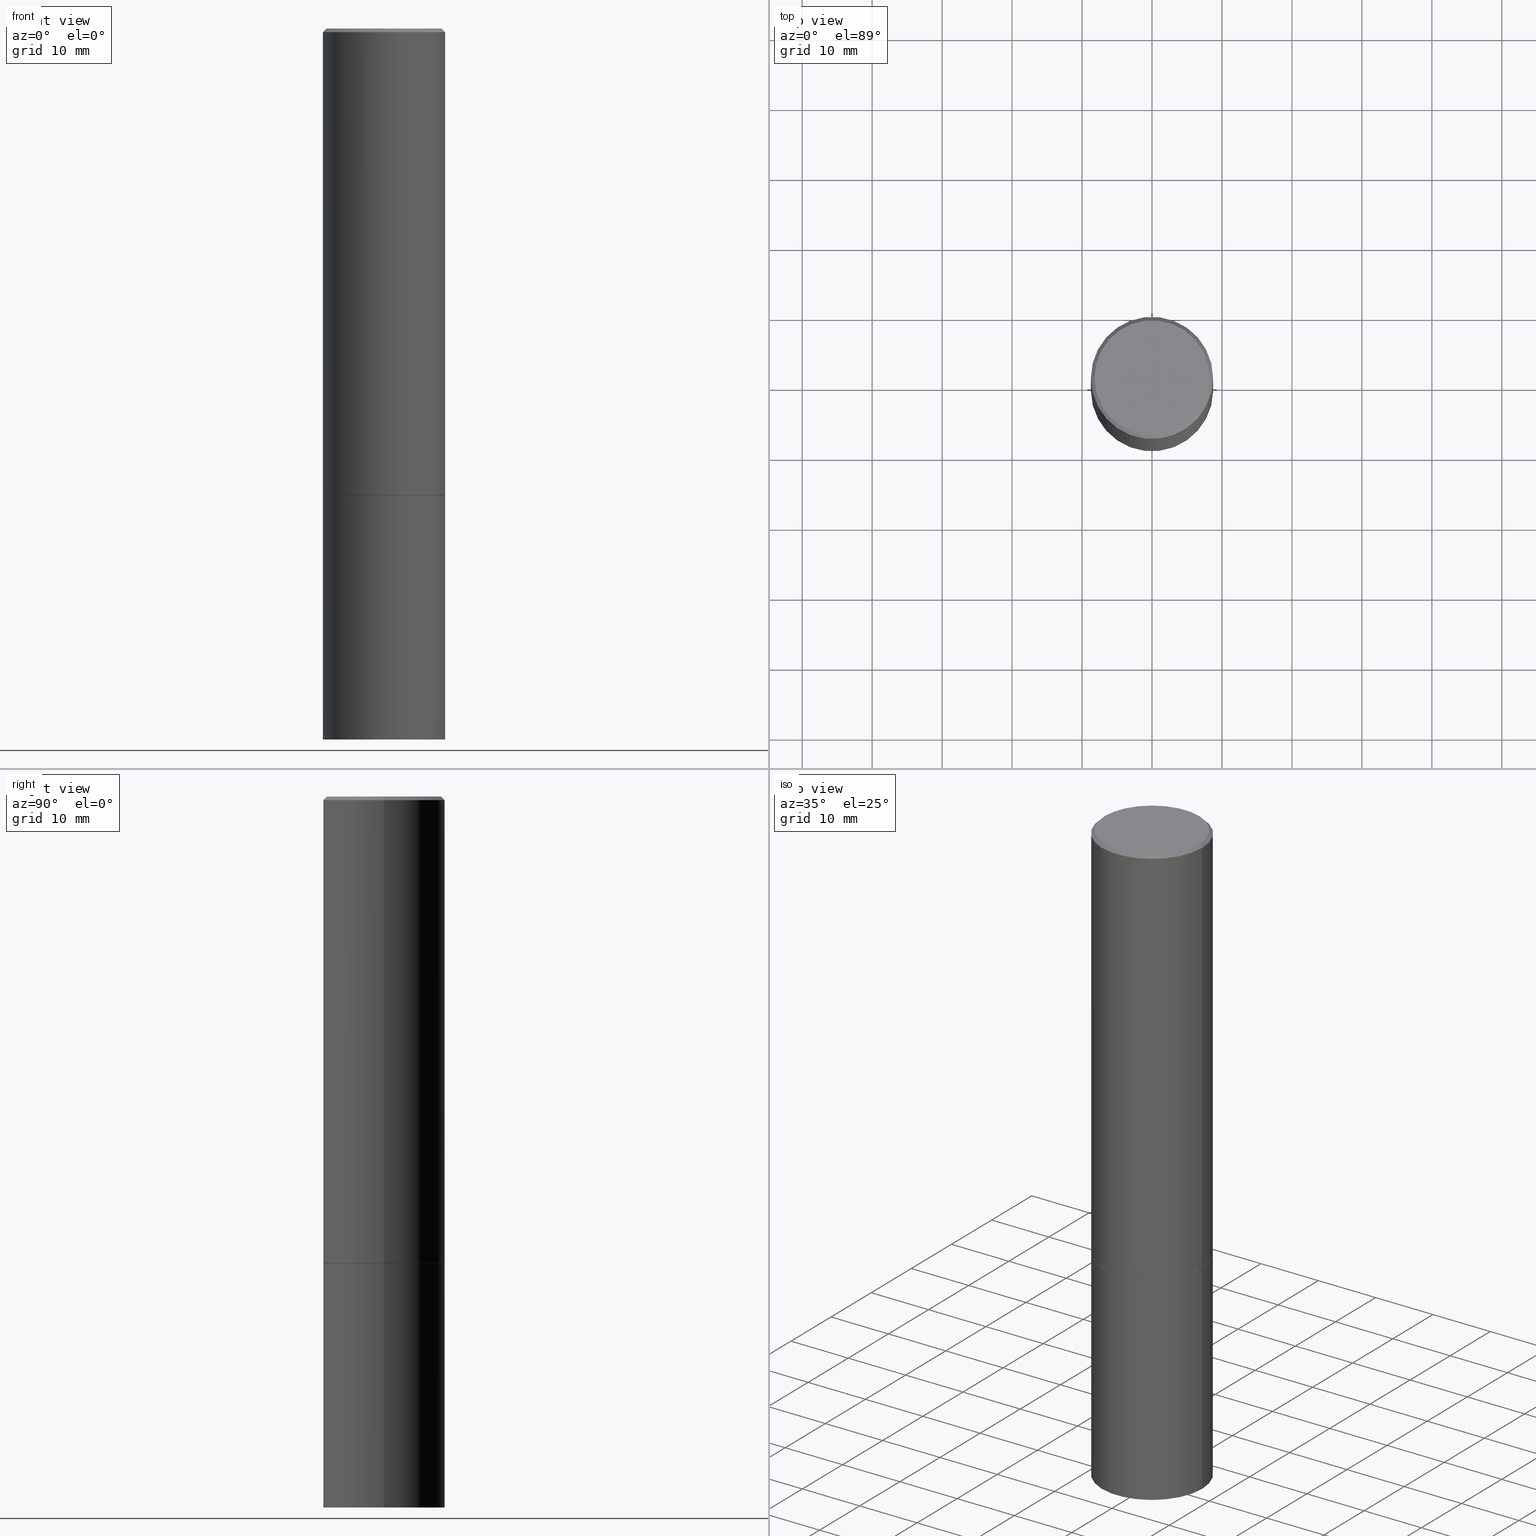
[diagram: canonical four-view strip — front | top / right | iso, engineering-drawing reading convention]
A machine part, canonical four-view strip (front | top / right | iso — engineering-drawing reading convention). The complete STEP part file that produces these views, byte-faithful:
ISO-10303-21;
HEADER;
FILE_DESCRIPTION (( 'STEP AP203' ),
    '1' );
FILE_NAME ('30025.STEP',
    '2023-03-21T20:21:11',
    ( '' ),
    ( '' ),
    'SwSTEP 2.0',
    'SolidWorks 2022',
    '' );
FILE_SCHEMA (( 'CONFIG_CONTROL_DESIGN' ));
ENDSEC;

DATA;
#1 = CC_DESIGN_APPROVAL ( #324, ( #250 ) ) ;
#2 = CIRCLE ( 'NONE', #228, 0.3427499999999999991 ) ;
#3 = VECTOR ( 'NONE', #205, 39.37007874015748143 ) ;
#4 = PERSON_AND_ORGANIZATION_ROLE ( 'creator' ) ;
#5 = EDGE_LOOP ( 'NONE', ( #345, #18, #171, #194 ) ) ;
#6 = EDGE_LOOP ( 'NONE', ( #71, #82, #374, #249 ) ) ;
#7 = DIRECTION ( 'NONE',  ( 1.000000000000000000, -6.982962677686263555E-15, 0.000000000000000000 ) ) ;
#8 = AXIS2_PLACEMENT_3D ( 'NONE', #204, #325, #292 ) ;
#9 = ORIENTED_EDGE ( 'NONE', *, *, #248, .F. ) ;
#10 = EDGE_CURVE ( 'NONE', #319, #305, #2, .T. ) ;
#11 = DIRECTION ( 'NONE',  ( -2.445468806185136597E-29, 3.491481338843145583E-15, 1.000000000000000000 ) ) ;
#12 = DIRECTION ( 'NONE',  ( 1.000000000000000000, -6.982962677686269077E-15, 0.000000000000000000 ) ) ;
#13 = ORIENTED_EDGE ( 'NONE', *, *, #192, .F. ) ;
#14 = CARTESIAN_POINT ( 'NONE',  ( 0.3427499999999999991, -1.155854897224022715E-14, -2.625000000000000444 ) ) ;
#15 = EDGE_LOOP ( 'NONE', ( #160, #49, #202, #73 ) ) ;
#16 = DIRECTION ( 'NONE',  ( 1.000000000000000000, -6.982962677686265133E-15, 4.876157412475882773E-29 ) ) ;
#17 = COORDINATED_UNIVERSAL_TIME_OFFSET ( 5, 0, .BEHIND. ) ;
#18 = ORIENTED_EDGE ( 'NONE', *, *, #210, .T. ) ;
#19 = AXIS2_PLACEMENT_3D ( 'NONE', #47, #165, #190 ) ;
#20 = CONICAL_SURFACE ( 'NONE', #274, 751.2258538476739886, 1.518436449235074148 ) ;
#21 = DIRECTION ( 'NONE',  ( -1.000000000000000000, 6.982962677686266711E-15, 0.000000000000000000 ) ) ;
#22 = APPLICATION_PROTOCOL_DEFINITION ( 'international standard', 'config_control_design', 1994, #179 ) ;
#23 = DIRECTION ( 'NONE',  ( -2.438088387897960049E-29, 3.491481338843145188E-15, 1.000000000000000000 ) ) ;
#24 = ADVANCED_FACE ( 'NONE', ( #222 ), #264, .F. ) ;
#25 = DIRECTION ( 'NONE',  ( -2.445468806185136597E-29, 3.491481338843145583E-15, 1.000000000000000000 ) ) ;
#26 = LOCAL_TIME ( 16, 21, 11.00000000000000000, #225 ) ;
#27 = ADVANCED_FACE ( 'NONE', ( #379 ), #106, .T. ) ;
#28 = AXIS2_PLACEMENT_3D ( 'NONE', #149, #90, #148 ) ;
#29 = DIRECTION ( 'NONE',  ( -1.000000000000000000, 6.982962677686266711E-15, 0.000000000000000000 ) ) ;
#30 = APPROVAL_ROLE ( '' ) ;
#31 = EDGE_CURVE ( 'NONE', #377, #283, #322, .T. ) ;
#32 = LINE ( 'NONE', #152, #263 ) ;
#33 = APPROVAL ( #191, 'UNSPECIFIED' ) ;
#34 = AXIS2_PLACEMENT_3D ( 'NONE', #40, #282, #12 ) ;
#35 = EDGE_CURVE ( 'NONE', #278, #168, #131, .T. ) ;
#36 = ORIENTED_EDGE ( 'NONE', *, *, #139, .F. ) ;
#37 = PRODUCT ( '30025', '30025', '', ( #242 ) ) ;
#38 = VERTEX_POINT ( 'NONE', #311 ) ;
#39 = DIRECTION ( 'NONE',  ( 1.000000000000000000, -6.982962677686265133E-15, 0.000000000000000000 ) ) ;
#40 = CARTESIAN_POINT ( 'NONE',  ( 9.781875224740546387E-29, -1.396592535537258233E-14, -4.000000000000000000 ) ) ;
#41 = EDGE_CURVE ( 'NONE', #305, #99, #134, .T. ) ;
#42 = VERTEX_POINT ( 'NONE', #43 ) ;
#43 = CARTESIAN_POINT ( 'NONE',  ( 0.3237499999999995937, -2.324606020144677531E-15, 4.268512490116445031E-18 ) ) ;
#44 = AXIS2_PLACEMENT_3D ( 'NONE', #272, #86, #361 ) ;
#45 = CONICAL_SURFACE ( 'NONE', #212, 751.2258538476739886, 1.518436449235074148 ) ;
#46 = EDGE_LOOP ( 'NONE', ( #80, #75, #129, #196 ) ) ;
#47 = CARTESIAN_POINT ( 'NONE',  ( 2.260734166900925613E-15, 0.3237499999999995937, -1.128232827205416735E-15 ) ) ;
#48 = PERSON_AND_ORGANIZATION ( #285, #304 ) ;
#49 = ORIENTED_EDGE ( 'NONE', *, *, #50, .F. ) ;
#50 = EDGE_CURVE ( 'NONE', #280, #42, #167, .T. ) ;
#51 =( NAMED_UNIT ( * ) PLANE_ANGLE_UNIT ( ) SI_UNIT ( $, .RADIAN. ) );
#52 = DIRECTION ( 'NONE',  ( 1.000000000000000000, -6.982962677686265922E-15, 4.876176775795935793E-29 ) ) ;
#53 = CARTESIAN_POINT ( 'NONE',  ( -1.043851414335219820E-46, 1.490343170380447200E-32, 4.268512490100411279E-18 ) ) ;
#54 = CALENDAR_DATE ( 2023, 21, 3 ) ;
#55 = EDGE_LOOP ( 'NONE', ( #258, #230 ) ) ;
#56 = FACE_OUTER_BOUND ( 'NONE', #138, .T. ) ;
#57 = LINE ( 'NONE', #321, #3 ) ;
#58 = CARTESIAN_POINT ( 'NONE',  ( -0.3237499999999995937, 2.295648980289356868E-15, 4.268512490084478446E-18 ) ) ;
#59 = DIRECTION ( 'NONE',  ( 1.000000000000000000, -6.982962677686265922E-15, 4.876176775795935793E-29 ) ) ;
#60 = CARTESIAN_POINT ( 'NONE',  ( 0.3437500000000006661, -1.632422154210654946E-14, -4.000000000000000000 ) ) ;
#61 = LOCAL_TIME ( 16, 21, 11.00000000000000000, #151 ) ;
#62 = CARTESIAN_POINT ( 'NONE',  ( -0.3437500000000006661, -1.156553193491792420E-14, -4.000000000000000000 ) ) ;
#63 = EDGE_CURVE ( 'NONE', #42, #168, #284, .T. ) ;
#64 = CALENDAR_DATE ( 2023, 21, 3 ) ;
#65 = LINE ( 'NONE', #185, #102 ) ;
#66 = PERSON_AND_ORGANIZATION ( #285, #304 ) ;
#67 = CIRCLE ( 'NONE', #118, 0.3437500000000000000 ) ;
#68 = EDGE_CURVE ( 'NONE', #305, #319, #389, .T. ) ;
#69 = ADVANCED_BREP_SHAPE_REPRESENTATION ( '30025', ( #218, #336, #217 ), #126 ) ;
#70 = CONICAL_SURFACE ( 'NONE', #166, 0.3427499999999999991, 0.7853981633972775267 ) ;
#71 = ORIENTED_EDGE ( 'NONE', *, *, #244, .F. ) ;
#72 = CC_DESIGN_PERSON_AND_ORGANIZATION_ASSIGNMENT ( #48, #94, ( #239 ) ) ;
#73 = ORIENTED_EDGE ( 'NONE', *, *, #35, .T. ) ;
#74 = DIRECTION ( 'NONE',  ( 1.000000000000000000, -6.982962677686266711E-15, 0.000000000000000000 ) ) ;
#75 = ORIENTED_EDGE ( 'NONE', *, *, #10, .T. ) ;
#76 = DIRECTION ( 'NONE',  ( 1.000000000000000000, -6.982962677686267499E-15, 4.876176775795935232E-29 ) ) ;
#77 = CC_DESIGN_APPROVAL ( #33, ( #227 ) ) ;
#78 = CLOSED_SHELL ( 'NONE', ( #100, #155, #359, #302, #293 ) ) ;
#79 = APPROVAL_STATUS ( 'not_yet_approved' ) ;
#80 = ORIENTED_EDGE ( 'NONE', *, *, #210, .F. ) ;
#81 = CARTESIAN_POINT ( 'NONE',  ( -0.3437500000000000000, 2.442490654175344389E-15, -1.690883937275123635E-29 ) ) ;
#82 = ORIENTED_EDGE ( 'NONE', *, *, #63, .T. ) ;
#83 = CARTESIAN_POINT ( 'NONE',  ( 1.060161191344789336E-27, -1.513629209411318885E-13, -43.35206356602893152 ) ) ;
#84 = DIRECTION ( 'NONE',  ( 1.000000000000000000, -6.982962677686263555E-15, 0.000000000000000000 ) ) ;
#85 =( NAMED_UNIT ( * ) SI_UNIT ( $, .STERADIAN. ) SOLID_ANGLE_UNIT ( ) );
#86 = DIRECTION ( 'NONE',  ( 2.438088387897960049E-29, -3.491481338843145188E-15, -1.000000000000000000 ) ) ;
#87 = CIRCLE ( 'NONE', #28, 0.3437499999999996669 ) ;
#88 = EDGE_CURVE ( 'NONE', #256, #283, #140, .T. ) ;
#89 = EDGE_CURVE ( 'NONE', #99, #38, #335, .T. ) ;
#90 = DIRECTION ( 'NONE',  ( -2.445468806185136597E-29, 3.491481338843145583E-15, 1.000000000000000000 ) ) ;
#91 = DATE_AND_TIME ( #143, #112 ) ;
#92 = CARTESIAN_POINT ( 'NONE',  ( -0.3437500000000000000, -9.123041280742575082E-15, -2.625000000000000000 ) ) ;
#93 = AXIS2_PLACEMENT_3D ( 'NONE', #269, #120, #29 ) ;
#94 = PERSON_AND_ORGANIZATION_ROLE ( 'classification_officer' ) ;
#95 = DIRECTION ( 'NONE',  ( -0.9986295347545742773, 6.790662755453668466E-15, -0.05233595624293643084 ) ) ;
#96 = LENGTH_MEASURE_WITH_UNIT ( LENGTH_MEASURE( 0.02539999999999999897 ), #237 );
#97 = APPROVAL_PERSON_ORGANIZATION ( #344, #354, #289 ) ;
#98 = CC_DESIGN_PERSON_AND_ORGANIZATION_ASSIGNMENT ( #330, #318, ( #227 ) ) ;
#99 = VERTEX_POINT ( 'NONE', #259 ) ;
#100 = ADVANCED_FACE ( 'NONE', ( #229 ), #349, .T. ) ;
#101 = DIMENSIONAL_EXPONENTS ( 1.000000000000000000, 0.000000000000000000, 0.000000000000000000, 0.000000000000000000, 0.000000000000000000, 0.000000000000000000, 0.000000000000000000 ) ;
#102 = VECTOR ( 'NONE', #122, 39.37007874015748143 ) ;
#103 = VERTEX_POINT ( 'NONE', #281 ) ;
#104 = LINE ( 'NONE', #254, #298 ) ;
#105 = ORIENTED_EDGE ( 'NONE', *, *, #139, .T. ) ;
#106 = CYLINDRICAL_SURFACE ( 'NONE', #153, 0.3437499999999998335 ) ;
#107 = PERSON_AND_ORGANIZATION_ROLE ( 'creator' ) ;
#108 = ORIENTED_EDGE ( 'NONE', *, *, #299, .T. ) ;
#109 = DIRECTION ( 'NONE',  ( 0.7071067811865469066, -7.319954787623254468E-15, -0.7071067811865482389 ) ) ;
#110 = DIRECTION ( 'NONE',  ( -2.445468806185136597E-29, 3.491481338843145583E-15, 1.000000000000000000 ) ) ;
#111 = AXIS2_PLACEMENT_3D ( 'NONE', #388, #241, #365 ) ;
#112 = LOCAL_TIME ( 16, 21, 11.00000000000000000, #17 ) ;
#113 = ORIENTED_EDGE ( 'NONE', *, *, #251, .T. ) ;
#114 = DIRECTION ( 'NONE',  ( -2.445468806185136877E-29, 3.491481338843145188E-15, 1.000000000000000000 ) ) ;
#115 = CARTESIAN_POINT ( 'NONE',  ( 0.3437499999999996669, -2.428125813510824906E-15, -0.02000000000000009409 ) ) ;
#116 = DIRECTION ( 'NONE',  ( -2.445468806185136597E-29, 3.491481338843145583E-15, 1.000000000000000000 ) ) ;
#117 = CARTESIAN_POINT ( 'NONE',  ( 1.060161191344789336E-27, -1.513629209411318885E-13, -43.35206356602893152 ) ) ;
#118 = AXIS2_PLACEMENT_3D ( 'NONE', #119, #116, #235 ) ;
#119 = CARTESIAN_POINT ( 'NONE',  ( 9.781875224740546387E-29, -1.396592535537258233E-14, -4.000000000000000000 ) ) ;
#120 = DIRECTION ( 'NONE',  ( 2.445468806185136597E-29, -3.491481338843145583E-15, -1.000000000000000000 ) ) ;
#121 = VECTOR ( 'NONE', #95, 39.37007874015748143 ) ;
#122 = DIRECTION ( 'NONE',  ( -0.7071067811865469066, 2.468850131082249961E-15, -0.7071067811865482389 ) ) ;
#123 = COORDINATED_UNIVERSAL_TIME_OFFSET ( 5, 0, .BEHIND. ) ;
#124 = APPROVAL_STATUS ( 'not_yet_approved' ) ;
#125 = CIRCLE ( 'NONE', #111, 0.3437500000000000000 ) ;
#126 =( GEOMETRIC_REPRESENTATION_CONTEXT ( 3 ) GLOBAL_UNCERTAINTY_ASSIGNED_CONTEXT ( ( #362 ) ) GLOBAL_UNIT_ASSIGNED_CONTEXT ( ( #301, #51, #85 ) ) REPRESENTATION_CONTEXT ( 'NONE', 'WORKASPACE' ) );
#127 = ORIENTED_EDGE ( 'NONE', *, *, #68, .F. ) ;
#128 = APPROVAL_DATE_TIME ( #159, #324 ) ;
#129 = ORIENTED_EDGE ( 'NONE', *, *, #41, .T. ) ;
#130 = DIRECTION ( 'NONE',  ( -2.445468806185136597E-29, 3.491481338843145583E-15, 1.000000000000000000 ) ) ;
#131 = CIRCLE ( 'NONE', #357, 0.3437499999999996669 ) ;
#132 = AXIS2_PLACEMENT_3D ( 'NONE', #163, #11, #7 ) ;
#133 = ORIENTED_EDGE ( 'NONE', *, *, #244, .T. ) ;
#134 = LINE ( 'NONE', #14, #369 ) ;
#135 = PERSON_AND_ORGANIZATION ( #285, #304 ) ;
#136 = ORIENTED_EDGE ( 'NONE', *, *, #35, .F. ) ;
#137 = CARTESIAN_POINT ( 'NONE',  ( 6.419355616235984688E-29, -9.165138514463258190E-15, -2.625000000000000444 ) ) ;
#138 = EDGE_LOOP ( 'NONE', ( #13, #113, #193 ) ) ;
#139 = EDGE_CURVE ( 'NONE', #368, #377, #172, .T. ) ;
#140 = LINE ( 'NONE', #81, #188 ) ;
#141 = LOCAL_TIME ( 16, 21, 11.00000000000000000, #307 ) ;
#142 = AXIS2_PLACEMENT_3D ( 'NONE', #145, #265, #327 ) ;
#143 = CALENDAR_DATE ( 2023, 21, 3 ) ;
#144 = DIRECTION ( 'NONE',  ( 1.000000000000000000, -6.982962677686265133E-15, 0.000000000000000000 ) ) ;
#145 = CARTESIAN_POINT ( 'NONE',  ( 4.890937612370296805E-31, -6.982962677686323656E-17, -0.02000000000000009409 ) ) ;
#146 = CC_DESIGN_PERSON_AND_ORGANIZATION_ASSIGNMENT ( #156, #366, ( #37 ) ) ;
#147 = CARTESIAN_POINT ( 'NONE',  ( 6.419355616235984688E-29, -9.165138514463258190E-15, -2.625000000000000444 ) ) ;
#148 = DIRECTION ( 'NONE',  ( 1.000000000000000000, -6.982962677686266711E-15, 0.000000000000000000 ) ) ;
#149 = CARTESIAN_POINT ( 'NONE',  ( 4.890937612370296805E-31, -6.982962677686323656E-17, -0.02000000000000009409 ) ) ;
#150 = CARTESIAN_POINT ( 'NONE',  ( -0.3437499999999996669, 2.330563793677788517E-15, -0.02000000000000009409 ) ) ;
#151 = COORDINATED_UNIVERSAL_TIME_OFFSET ( 5, 0, .BEHIND. ) ;
#152 = CARTESIAN_POINT ( 'NONE',  ( -0.3427499999999999991, -6.729753287645514809E-15, -2.625000000000000444 ) ) ;
#153 = AXIS2_PLACEMENT_3D ( 'NONE', #343, #130, #76 ) ;
#154 = EDGE_CURVE ( 'NONE', #99, #168, #231, .T. ) ;
#155 = ADVANCED_FACE ( 'NONE', ( #56 ), #20, .F. ) ;
#156 = PERSON_AND_ORGANIZATION ( #285, #304 ) ;
#157 = DESIGN_CONTEXT ( 'detailed design', #353, 'design' ) ;
#158 = CIRCLE ( 'NONE', #177, 0.3437500000000000000 ) ;
#159 = DATE_AND_TIME ( #271, #312 ) ;
#160 = ORIENTED_EDGE ( 'NONE', *, *, #63, .F. ) ;
#161 = PRODUCT_DEFINITION_SHAPE ( 'NONE', 'NONE',  #250 ) ;
#162 = EDGE_LOOP ( 'NONE', ( #350, #173, #189, #36 ) ) ;
#163 = CARTESIAN_POINT ( 'NONE',  ( 6.416910147429799085E-29, -9.161647033124413605E-15, -2.624000000000000110 ) ) ;
#164 = ORIENTED_EDGE ( 'NONE', *, *, #50, .T. ) ;
#165 = DIRECTION ( 'NONE',  ( 2.438088387897960049E-29, -3.491481338843145188E-15, -1.000000000000000000 ) ) ;
#166 = AXIS2_PLACEMENT_3D ( 'NONE', #232, #355, #328 ) ;
#167 = CIRCLE ( 'NONE', #364, 0.3237499999999995937 ) ;
#168 = VERTEX_POINT ( 'NONE', #115 ) ;
#169 = CC_DESIGN_DATE_AND_TIME_ASSIGNMENT ( #376, #214, ( #239 ) ) ;
#170 = DIRECTION ( 'NONE',  ( 1.000000000000000000, -6.982962677686269077E-15, 0.000000000000000000 ) ) ;
#171 = ORIENTED_EDGE ( 'NONE', *, *, #89, .F. ) ;
#172 = LINE ( 'NONE', #262, #276 ) ;
#173 = ORIENTED_EDGE ( 'NONE', *, *, #88, .T. ) ;
#174 = FACE_OUTER_BOUND ( 'NONE', #5, .T. ) ;
#175 = EDGE_CURVE ( 'NONE', #38, #278, #104, .T. ) ;
#176 = CARTESIAN_POINT ( 'NONE',  ( -0.3427499999999999991, -6.724454833297293196E-15, -2.625000000000000444 ) ) ;
#177 = AXIS2_PLACEMENT_3D ( 'NONE', #358, #206, #84 ) ;
#178 = CARTESIAN_POINT ( 'NONE',  ( 0.3427499999999999991, -1.155854897224022715E-14, -2.625000000000000444 ) ) ;
#179 = APPLICATION_CONTEXT ( 'configuration controlled 3d designs of mechanical parts and assemblies' ) ;
#180 = CARTESIAN_POINT ( 'NONE',  ( 6.419355616235984688E-29, -9.165138514463258190E-15, -2.625000000000000444 ) ) ;
#181 = ADVANCED_FACE ( 'NONE', ( #174 ), #70, .T. ) ;
#182 = DIRECTION ( 'NONE',  ( 2.445468806185136597E-29, -3.491481338843145583E-15, -1.000000000000000000 ) ) ;
#183 = CONICAL_SURFACE ( 'NONE', #142, 0.3437499999999996669, 0.7853981633974473908 ) ;
#184 = FACE_OUTER_BOUND ( 'NONE', #6, .T. ) ;
#185 = CARTESIAN_POINT ( 'NONE',  ( -0.3437499999999996669, 2.330563793677788517E-15, -0.02000000000000009409 ) ) ;
#186 = CONICAL_SURFACE ( 'NONE', #245, 0.3427499999999999991, 0.7853981633972775267 ) ;
#187 = CLOSED_SHELL ( 'NONE', ( #181, #306, #261, #247, #27, #303, #348, #24 ) ) ;
#188 = VECTOR ( 'NONE', #198, 39.37007874015748143 ) ;
#189 = ORIENTED_EDGE ( 'NONE', *, *, #31, .F. ) ;
#190 = DIRECTION ( 'NONE',  ( -1.000000000000000000, 6.982962677686265922E-15, -4.876176775795935793E-29 ) ) ;
#191 = APPROVAL_STATUS ( 'not_yet_approved' ) ;
#192 = EDGE_CURVE ( 'NONE', #103, #256, #333, .T. ) ;
#193 = ORIENTED_EDGE ( 'NONE', *, *, #236, .F. ) ;
#194 = ORIENTED_EDGE ( 'NONE', *, *, #41, .F. ) ;
#195 = PERSON_AND_ORGANIZATION ( #285, #304 ) ;
#196 = ORIENTED_EDGE ( 'NONE', *, *, #299, .F. ) ;
#197 = APPROVAL_PERSON_ORGANIZATION ( #66, #324, #390 ) ;
#198 = DIRECTION ( 'NONE',  ( -2.445468806185136877E-29, 3.491481338843145188E-15, 1.000000000000000000 ) ) ;
#199 = AXIS2_PLACEMENT_3D ( 'NONE', #386, #25, #59 ) ;
#200 = ORIENTED_EDGE ( 'NONE', *, *, #236, .T. ) ;
#201 = CARTESIAN_POINT ( 'NONE',  ( 0.000000000000000000, 0.000000000000000000, 0.000000000000000000 ) ) ;
#202 = ORIENTED_EDGE ( 'NONE', *, *, #209, .T. ) ;
#203 = DIRECTION ( 'NONE',  ( 2.445468806185136597E-29, -3.491481338843145583E-15, -1.000000000000000000 ) ) ;
#204 = CARTESIAN_POINT ( 'NONE',  ( 0.000000000000000000, 0.000000000000000000, 0.000000000000000000 ) ) ;
#205 = DIRECTION ( 'NONE',  ( 0.9986295347545742773, -7.033825938271997912E-15, -0.05233595624293643084 ) ) ;
#206 = DIRECTION ( 'NONE',  ( -2.445468806185136597E-29, 3.491481338843145583E-15, 1.000000000000000000 ) ) ;
#207 = FACE_OUTER_BOUND ( 'NONE', #316, .T. ) ;
#208 = APPROVAL_DATE_TIME ( #91, #354 ) ;
#209 = EDGE_CURVE ( 'NONE', #280, #278, #65, .T. ) ;
#210 = EDGE_CURVE ( 'NONE', #319, #38, #32, .T. ) ;
#211 = FACE_OUTER_BOUND ( 'NONE', #337, .T. ) ;
#212 = AXIS2_PLACEMENT_3D ( 'NONE', #117, #182, #329 ) ;
#213 = VECTOR ( 'NONE', #371, 39.37007874015748143 ) ;
#214 = DATE_TIME_ROLE ( 'classification_date' ) ;
#215 = EDGE_CURVE ( 'NONE', #283, #377, #125, .T. ) ;
#216 = CARTESIAN_POINT ( 'NONE',  ( -7.993848664353087702E-19, -1.390302571108676536E-14, -3.981984825871457190 ) ) ;
#217 = AXIS2_PLACEMENT_3D ( 'NONE', #326, #294, #387 ) ;
#218 = MANIFOLD_SOLID_BREP ( 'Body-Move/Copy2[1]', #78 ) ;
#219 = ORIENTED_EDGE ( 'NONE', *, *, #10, .F. ) ;
#220 = ORIENTED_EDGE ( 'NONE', *, *, #88, .F. ) ;
#221 = CC_DESIGN_PERSON_AND_ORGANIZATION_ASSIGNMENT ( #135, #107, ( #227 ) ) ;
#222 = FACE_OUTER_BOUND ( 'NONE', #260, .T. ) ;
#223 = EDGE_LOOP ( 'NONE', ( #372, #342, #9, #246 ) ) ;
#224 = DIRECTION ( 'NONE',  ( -2.445468806185136597E-29, 3.491481338843145583E-15, 1.000000000000000000 ) ) ;
#225 = COORDINATED_UNIVERSAL_TIME_OFFSET ( 5, 0, .BEHIND. ) ;
#226 = EDGE_LOOP ( 'NONE', ( #310, #108, #339, #136 ) ) ;
#227 = PRODUCT_DEFINITION_FORMATION_WITH_SPECIFIED_SOURCE ( 'ANY', '', #37, .NOT_KNOWN. ) ;
#228 = AXIS2_PLACEMENT_3D ( 'NONE', #373, #224, #144 ) ;
#229 = FACE_OUTER_BOUND ( 'NONE', #162, .T. ) ;
#230 = ORIENTED_EDGE ( 'NONE', *, *, #215, .T. ) ;
#231 = LINE ( 'NONE', #351, #213 ) ;
#232 = CARTESIAN_POINT ( 'NONE',  ( 6.419355616235984688E-29, -9.165138514463258190E-15, -2.625000000000000444 ) ) ;
#233 = CYLINDRICAL_SURFACE ( 'NONE', #8, 0.3437499999999998335 ) ;
#234 = VECTOR ( 'NONE', #109, 39.37007874015748143 ) ;
#235 = DIRECTION ( 'NONE',  ( 1.000000000000000000, -6.982962677686269077E-15, 0.000000000000000000 ) ) ;
#236 = EDGE_CURVE ( 'NONE', #256, #368, #323, .T. ) ;
#237 =( LENGTH_UNIT ( ) NAMED_UNIT ( * ) SI_UNIT ( $, .METRE. ) );
#238 = APPROVAL_DATE_TIME ( #270, #33 ) ;
#239 = SECURITY_CLASSIFICATION ( '', '', #363 ) ;
#240 = CC_DESIGN_DATE_AND_TIME_ASSIGNMENT ( #341, #338, ( #250 ) ) ;
#241 = DIRECTION ( 'NONE',  ( -2.445468806185136597E-29, 3.491481338843145583E-15, 1.000000000000000000 ) ) ;
#242 = MECHANICAL_CONTEXT ( 'NONE', #179, 'mechanical' ) ;
#243 = APPROVAL_PERSON_ORGANIZATION ( #195, #33, #30 ) ;
#244 = EDGE_CURVE ( 'NONE', #42, #280, #346, .T. ) ;
#245 = AXIS2_PLACEMENT_3D ( 'NONE', #180, #300, #267 ) ;
#246 = ORIENTED_EDGE ( 'NONE', *, *, #154, .F. ) ;
#247 = ADVANCED_FACE ( 'NONE', ( #381 ), #332, .T. ) ;
#248 = EDGE_CURVE ( 'NONE', #168, #278, #87, .T. ) ;
#249 = ORIENTED_EDGE ( 'NONE', *, *, #209, .F. ) ;
#250 = PRODUCT_DEFINITION ( 'UNKNOWN', '', #227, #157 ) ;
#251 = EDGE_CURVE ( 'NONE', #103, #368, #57, .T. ) ;
#252 = AXIS2_PLACEMENT_3D ( 'NONE', #315, #340, #170 ) ;
#253 = AXIS2_PLACEMENT_3D ( 'NONE', #53, #110, #331 ) ;
#254 = CARTESIAN_POINT ( 'NONE',  ( -0.3437499999999998335, 2.442490654175343206E-15, -1.690883937275123074E-29 ) ) ;
#255 = CALENDAR_DATE ( 2023, 21, 3 ) ;
#256 = VERTEX_POINT ( 'NONE', #62 ) ;
#257 = CARTESIAN_POINT ( 'NONE',  ( -1.043851414335219820E-46, 1.490343170380447200E-32, 4.268512490100411279E-18 ) ) ;
#258 = ORIENTED_EDGE ( 'NONE', *, *, #31, .T. ) ;
#259 = CARTESIAN_POINT ( 'NONE',  ( 0.3437500000000000000, -1.156204045357906700E-14, -2.624000000000000110 ) ) ;
#260 = EDGE_LOOP ( 'NONE', ( #164, #133 ) ) ;
#261 = ADVANCED_FACE ( 'NONE', ( #184 ), #183, .T. ) ;
#262 = CARTESIAN_POINT ( 'NONE',  ( 0.3437500000000000000, -2.400393420454653787E-15, 1.676185766679852859E-29 ) ) ;
#263 = VECTOR ( 'NONE', #273, 39.37007874015748143 ) ;
#264 = PLANE ( 'NONE',  #19 ) ;
#265 = DIRECTION ( 'NONE',  ( 2.445468806185136597E-29, -3.491481338843145583E-15, -1.000000000000000000 ) ) ;
#266 = CYLINDRICAL_SURFACE ( 'NONE', #199, 0.3437500000000000000 ) ;
#267 = DIRECTION ( 'NONE',  ( 1.000000000000000000, -6.982962677686265133E-15, 0.000000000000000000 ) ) ;
#268 = AXIS2_PLACEMENT_3D ( 'NONE', #147, #23, #380 ) ;
#269 = CARTESIAN_POINT ( 'NONE',  ( 4.890937612370296805E-31, -6.982962677686323656E-17, -0.02000000000000009409 ) ) ;
#270 = DATE_AND_TIME ( #64, #61 ) ;
#271 = CALENDAR_DATE ( 2023, 21, 3 ) ;
#272 = CARTESIAN_POINT ( 'NONE',  ( 2.400393420454718079E-15, 0.3437499999999908407, -2.625000000000000888 ) ) ;
#273 = DIRECTION ( 'NONE',  ( -0.7071067811864267805, 7.493145998869918709E-15, 0.7071067811866682540 ) ) ;
#274 = AXIS2_PLACEMENT_3D ( 'NONE', #83, #203, #21 ) ;
#275 = APPLICATION_PROTOCOL_DEFINITION ( 'international standard', 'config_control_design', 1994, #353 ) ;
#276 = VECTOR ( 'NONE', #114, 39.37007874015748143 ) ;
#277 = PERSON_AND_ORGANIZATION ( #285, #304 ) ;
#278 = VERTEX_POINT ( 'NONE', #150 ) ;
#279 = PRODUCT_RELATED_PRODUCT_CATEGORY ( 'detail', '', ( #37 ) ) ;
#280 = VERTEX_POINT ( 'NONE', #58 ) ;
#281 = CARTESIAN_POINT ( 'NONE',  ( 9.737261470902389695E-29, -1.390382509595329685E-14, -3.981984825871457190 ) ) ;
#282 = DIRECTION ( 'NONE',  ( -2.445468806185136597E-29, 3.491481338843145583E-15, 1.000000000000000000 ) ) ;
#283 = VERTEX_POINT ( 'NONE', #92 ) ;
#284 = LINE ( 'NONE', #378, #234 ) ;
#285 = PERSON ( 'UNSPECIFIED', 'UNSPECIFIED', 'UNSPECIFIED', ('UNSPECIFIED'), ('UNSPECIFIED'), ('UNSPECIFIED') ) ;
#286 = DIRECTION ( 'NONE',  ( 0.7071067811864267805, -2.468850131080992517E-15, 0.7071067811866682540 ) ) ;
#287 = ORIENTED_EDGE ( 'NONE', *, *, #251, .F. ) ;
#288 = CARTESIAN_POINT ( 'NONE',  ( 4.890937612370296805E-31, -6.982962677686323656E-17, -0.02000000000000009409 ) ) ;
#289 = APPROVAL_ROLE ( '' ) ;
#290 = ORIENTED_EDGE ( 'NONE', *, *, #215, .F. ) ;
#291 = DIRECTION ( 'NONE',  ( -2.445468806185136597E-29, 3.491481338843145583E-15, 1.000000000000000000 ) ) ;
#292 = DIRECTION ( 'NONE',  ( 1.000000000000000000, -6.982962677686267499E-15, 4.876176775795935232E-29 ) ) ;
#293 = ADVANCED_FACE ( 'NONE', ( #384 ), #352, .F. ) ;
#294 = DIRECTION ( 'NONE',  ( 0.000000000000000000, 0.000000000000000000, 1.000000000000000000 ) ) ;
#295 = FACE_OUTER_BOUND ( 'NONE', #308, .T. ) ;
#296 = CC_DESIGN_APPROVAL ( #354, ( #239 ) ) ;
#297 = CARTESIAN_POINT ( 'NONE',  ( 0.3437500000000000000, -1.156553193491791158E-14, -2.625000000000000000 ) ) ;
#298 = VECTOR ( 'NONE', #320, 39.37007874015748143 ) ;
#299 = EDGE_CURVE ( 'NONE', #38, #99, #158, .T. ) ;
#300 = DIRECTION ( 'NONE',  ( -2.445468806185136597E-29, 3.491481338843145583E-15, 1.000000000000000000 ) ) ;
#301 =( CONVERSION_BASED_UNIT ( 'INCH', #96 ) LENGTH_UNIT ( ) NAMED_UNIT ( #101 ) );
#302 = ADVANCED_FACE ( 'NONE', ( #295 ), #266, .T. ) ;
#303 = ADVANCED_FACE ( 'NONE', ( #356 ), #186, .T. ) ;
#304 = ORGANIZATION ( 'UNSPECIFIED', 'UNSPECIFIED', '' ) ;
#305 = VERTEX_POINT ( 'NONE', #178 ) ;
#306 = ADVANCED_FACE ( 'NONE', ( #385 ), #233, .T. ) ;
#307 = COORDINATED_UNIVERSAL_TIME_OFFSET ( 5, 0, .BEHIND. ) ;
#308 = EDGE_LOOP ( 'NONE', ( #220, #200, #105, #290 ) ) ;
#309 = DIRECTION ( 'NONE',  ( -2.445468806185136597E-29, 3.491481338843145583E-15, 1.000000000000000000 ) ) ;
#310 = ORIENTED_EDGE ( 'NONE', *, *, #175, .F. ) ;
#311 = CARTESIAN_POINT ( 'NONE',  ( -0.3437500000000000000, -2.173247675775292485E-15, -2.624000000000000110 ) ) ;
#312 = LOCAL_TIME ( 16, 21, 11.00000000000000000, #123 ) ;
#313 = ORIENTED_EDGE ( 'NONE', *, *, #192, .T. ) ;
#314 = EDGE_CURVE ( 'NONE', #368, #256, #67, .T. ) ;
#315 = CARTESIAN_POINT ( 'NONE',  ( 6.419355616235983567E-29, -9.165138514463256612E-15, -2.625000000000000000 ) ) ;
#316 = EDGE_LOOP ( 'NONE', ( #287, #313, #370 ) ) ;
#317 = DIRECTION ( 'NONE',  ( -2.445468806185136597E-29, 3.491481338843145583E-15, 1.000000000000000000 ) ) ;
#318 = PERSON_AND_ORGANIZATION_ROLE ( 'design_supplier' ) ;
#319 = VERTEX_POINT ( 'NONE', #176 ) ;
#320 = DIRECTION ( 'NONE',  ( -2.445468806185136877E-29, 3.491481338843145188E-15, 1.000000000000000000 ) ) ;
#321 = CARTESIAN_POINT ( 'NONE',  ( 7.993848666300651617E-19, -1.390302571108676536E-14, -3.981984825871457190 ) ) ;
#322 = CIRCLE ( 'NONE', #252, 0.3437500000000000000 ) ;
#323 = CIRCLE ( 'NONE', #34, 0.3437500000000000000 ) ;
#324 = APPROVAL ( #124, 'UNSPECIFIED' ) ;
#325 = DIRECTION ( 'NONE',  ( -2.445468806185136597E-29, 3.491481338843145583E-15, 1.000000000000000000 ) ) ;
#326 = CARTESIAN_POINT ( 'NONE',  ( 0.000000000000000000, 0.000000000000000000, 0.000000000000000000 ) ) ;
#327 = DIRECTION ( 'NONE',  ( -1.000000000000000000, 6.982962677686266711E-15, 0.000000000000000000 ) ) ;
#328 = DIRECTION ( 'NONE',  ( 1.000000000000000000, -6.982962677686265133E-15, 0.000000000000000000 ) ) ;
#329 = DIRECTION ( 'NONE',  ( -1.000000000000000000, 6.982962677686266711E-15, 0.000000000000000000 ) ) ;
#330 = PERSON_AND_ORGANIZATION ( #285, #304 ) ;
#331 = DIRECTION ( 'NONE',  ( 1.000000000000000000, -6.982962677686265133E-15, 4.876157412475882773E-29 ) ) ;
#332 = CONICAL_SURFACE ( 'NONE', #93, 0.3437499999999996669, 0.7853981633974473908 ) ;
#333 = LINE ( 'NONE', #216, #121 ) ;
#334 = CC_DESIGN_PERSON_AND_ORGANIZATION_ASSIGNMENT ( #277, #4, ( #250 ) ) ;
#335 = CIRCLE ( 'NONE', #132, 0.3437500000000000000 ) ;
#336 = MANIFOLD_SOLID_BREP ( 'Body-Move/Copy2[2]', #187 ) ;
#337 = EDGE_LOOP ( 'NONE', ( #127, #219 ) ) ;
#338 = DATE_TIME_ROLE ( 'creation_date' ) ;
#339 = ORIENTED_EDGE ( 'NONE', *, *, #154, .T. ) ;
#340 = DIRECTION ( 'NONE',  ( -2.445468806185136597E-29, 3.491481338843145583E-15, 1.000000000000000000 ) ) ;
#341 = DATE_AND_TIME ( #255, #141 ) ;
#342 = ORIENTED_EDGE ( 'NONE', *, *, #175, .T. ) ;
#343 = CARTESIAN_POINT ( 'NONE',  ( 0.000000000000000000, 0.000000000000000000, 0.000000000000000000 ) ) ;
#344 = PERSON_AND_ORGANIZATION ( #285, #304 ) ;
#345 = ORIENTED_EDGE ( 'NONE', *, *, #68, .T. ) ;
#346 = CIRCLE ( 'NONE', #253, 0.3237499999999995937 ) ;
#347 = CC_DESIGN_SECURITY_CLASSIFICATION ( #239, ( #227 ) ) ;
#348 = ADVANCED_FACE ( 'NONE', ( #211 ), #360, .F. ) ;
#349 = CYLINDRICAL_SURFACE ( 'NONE', #383, 0.3437500000000000000 ) ;
#350 = ORIENTED_EDGE ( 'NONE', *, *, #314, .T. ) ;
#351 = CARTESIAN_POINT ( 'NONE',  ( 0.3437499999999998335, -2.400393420454653393E-15, 1.676185766679852018E-29 ) ) ;
#352 = PLANE ( 'NONE',  #44 ) ;
#353 = APPLICATION_CONTEXT ( 'configuration controlled 3d designs of mechanical parts and assemblies' ) ;
#354 = APPROVAL ( #79, 'UNSPECIFIED' ) ;
#355 = DIRECTION ( 'NONE',  ( -2.445468806185136597E-29, 3.491481338843145583E-15, 1.000000000000000000 ) ) ;
#356 = FACE_OUTER_BOUND ( 'NONE', #46, .T. ) ;
#357 = AXIS2_PLACEMENT_3D ( 'NONE', #288, #309, #74 ) ;
#358 = CARTESIAN_POINT ( 'NONE',  ( 6.416910147429799085E-29, -9.161647033124413605E-15, -2.624000000000000110 ) ) ;
#359 = ADVANCED_FACE ( 'NONE', ( #207 ), #45, .F. ) ;
#360 = PLANE ( 'NONE',  #268 ) ;
#361 = DIRECTION ( 'NONE',  ( -1.000000000000000000, 6.982962677686265922E-15, -4.876176775795935793E-29 ) ) ;
#362 = UNCERTAINTY_MEASURE_WITH_UNIT (LENGTH_MEASURE( 1.000000000000000082E-05 ), #301, 'distance_accuracy_value', 'NONE');
#363 = SECURITY_CLASSIFICATION_LEVEL ( 'unclassified' ) ;
#364 = AXIS2_PLACEMENT_3D ( 'NONE', #257, #291, #16 ) ;
#365 = DIRECTION ( 'NONE',  ( 1.000000000000000000, -6.982962677686269077E-15, 0.000000000000000000 ) ) ;
#366 = PERSON_AND_ORGANIZATION_ROLE ( 'design_owner' ) ;
#367 = SHAPE_DEFINITION_REPRESENTATION ( #161, #69 ) ;
#368 = VERTEX_POINT ( 'NONE', #60 ) ;
#369 = VECTOR ( 'NONE', #286, 39.37007874015748143 ) ;
#370 = ORIENTED_EDGE ( 'NONE', *, *, #314, .F. ) ;
#371 = DIRECTION ( 'NONE',  ( -2.445468806185136877E-29, 3.491481338843145188E-15, 1.000000000000000000 ) ) ;
#372 = ORIENTED_EDGE ( 'NONE', *, *, #89, .T. ) ;
#373 = CARTESIAN_POINT ( 'NONE',  ( 6.419355616235984688E-29, -9.165138514463258190E-15, -2.625000000000000444 ) ) ;
#374 = ORIENTED_EDGE ( 'NONE', *, *, #248, .T. ) ;
#375 = DIRECTION ( 'NONE',  ( -2.445468806185136597E-29, 3.491481338843145583E-15, 1.000000000000000000 ) ) ;
#376 = DATE_AND_TIME ( #54, #26 ) ;
#377 = VERTEX_POINT ( 'NONE', #297 ) ;
#378 = CARTESIAN_POINT ( 'NONE',  ( 0.3437499999999996669, -2.428125813510824906E-15, -0.02000000000000009409 ) ) ;
#379 = FACE_OUTER_BOUND ( 'NONE', #226, .T. ) ;
#380 = DIRECTION ( 'NONE',  ( 1.000000000000000000, -6.982962677686265922E-15, 4.876176775795935793E-29 ) ) ;
#381 = FACE_OUTER_BOUND ( 'NONE', #15, .T. ) ;
#382 = AXIS2_PLACEMENT_3D ( 'NONE', #137, #375, #39 ) ;
#383 = AXIS2_PLACEMENT_3D ( 'NONE', #201, #317, #52 ) ;
#384 = FACE_OUTER_BOUND ( 'NONE', #55, .T. ) ;
#385 = FACE_OUTER_BOUND ( 'NONE', #223, .T. ) ;
#386 = CARTESIAN_POINT ( 'NONE',  ( 0.000000000000000000, 0.000000000000000000, 0.000000000000000000 ) ) ;
#387 = DIRECTION ( 'NONE',  ( 1.000000000000000000, 0.000000000000000000, 0.000000000000000000 ) ) ;
#388 = CARTESIAN_POINT ( 'NONE',  ( 6.419355616235983567E-29, -9.165138514463256612E-15, -2.625000000000000000 ) ) ;
#389 = CIRCLE ( 'NONE', #382, 0.3427499999999999991 ) ;
#390 = APPROVAL_ROLE ( '' ) ;
ENDSEC;
END-ISO-10303-21;
